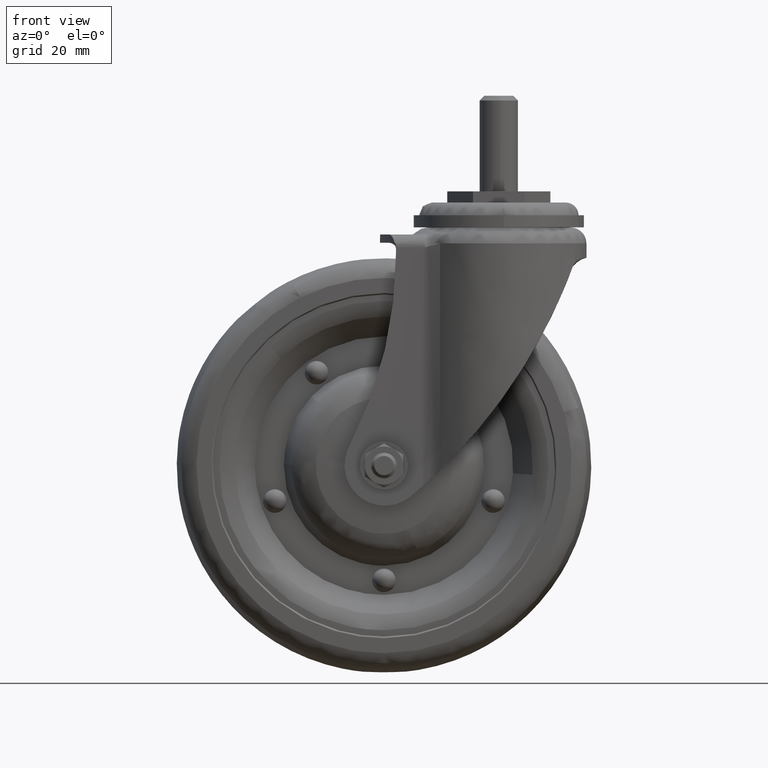
[diagram: clean part render]
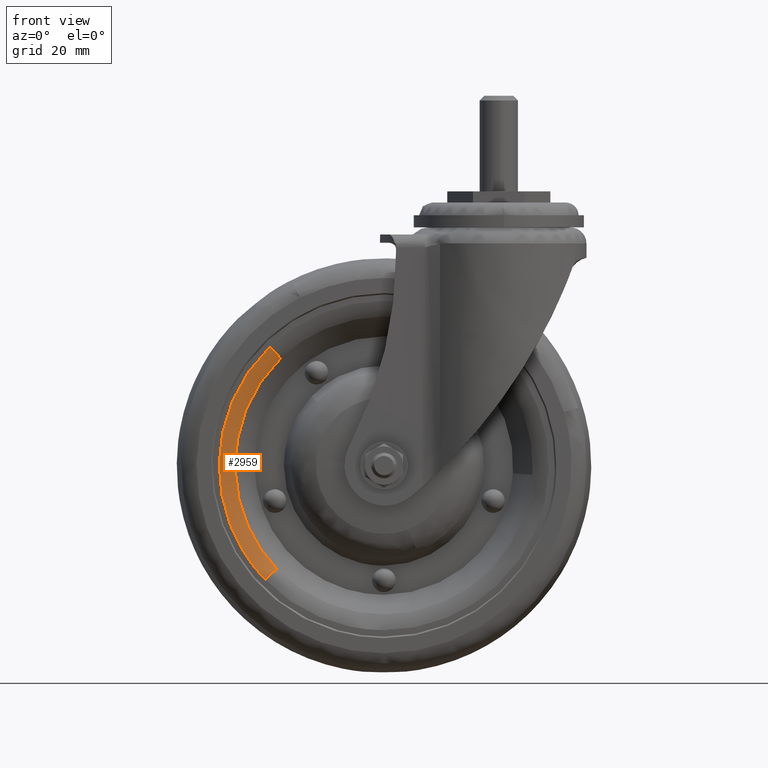
[diagram: same view with one face highlighted and labeled with its STEP entity id]
A machine part, front view. The second image highlights one B-rep face of the part: STEP entity #2959.
In plain terms, the highlighted face is a freeform B-spline surface patch.
Its self-contained STEP definition (entity closure, byte-faithful):
#87=CARTESIAN_POINT('',(-68.399482437764959,-9.949747470099226,-52.355657791550350));
#88=VERTEX_POINT('',#87);
#102=CARTESIAN_POINT('',(-69.644530208449666,-9.949747470099226,-118.399670437764900));
#103=VERTEX_POINT('',#102);
#104=CARTESIAN_POINT('',(-68.399482437764959,-9.949747470099226,-52.355657791550350));
#105=CARTESIAN_POINT('',(-82.708466845046274,-9.949747468305809,-66.135124653402571));
#106=CARTESIAN_POINT('',(-82.708466845046289,-9.949747468305809,-86.000188000000009));
#107=CARTESIAN_POINT('',(-82.708466845046289,-9.949747468305809,-104.833712656213380));
#108=CARTESIAN_POINT('',(-69.644530208449666,-9.949747470099226,-118.399670437764900));
#116=(BOUNDED_CURVE()B_SPLINE_CURVE(2,(#104,#105,#106,#107,#108),.UNSPECIFIED.,.F.,.U.)B_SPLINE_CURVE_WITH_KNOTS((3,2,3),(0.622155737437418,0.750000000000000,0.872155737437417),.UNSPECIFIED.)CURVE()GEOMETRIC_REPRESENTATION_ITEM()RATIONAL_B_SPLINE_CURVE((0.853629213191968,0.850221129724853,1.0,0.856885651461696,0.853629213191968))REPRESENTATION_ITEM(''));
#117=EDGE_CURVE('',#88,#103,#116,.T.);
#2839=CARTESIAN_POINT('',(-73.209877977737094,-12.0,-121.833079129158410));
#2840=VERTEX_POINT('',#2839);
#2873=CARTESIAN_POINT('',(-71.832891129158440,-12.0,-48.790310022262922));
#2874=VERTEX_POINT('',#2873);
#2888=CARTESIAN_POINT('',(-71.832891129158440,-12.000000000000002,-48.790310022262908));
#2889=CARTESIAN_POINT('',(-69.821646883534328,-11.999999997979304,-50.878842390272212));
#2890=CARTESIAN_POINT('',(-68.399482437764945,-9.949747470099226,-52.355657791550350));
#2898=(BOUNDED_CURVE()B_SPLINE_CURVE(2,(#2888,#2889,#2890),.UNSPECIFIED.,.F.,.U.)B_SPLINE_CURVE_WITH_KNOTS((3,3),(-1.556175678293999,-0.434617038927040),.UNSPECIFIED.)CURVE()GEOMETRIC_REPRESENTATION_ITEM()RATIONAL_B_SPLINE_CURVE((0.922813124655940,0.853101096639037,0.923967181512607))REPRESENTATION_ITEM(''));
#2899=EDGE_CURVE('',#2874,#88,#2898,.T.);
#2906=CARTESIAN_POINT('',(-73.209877977737094,-11.999999999999998,-121.833079129158450));
#2907=CARTESIAN_POINT('',(-71.121345609727783,-11.999999997979296,-119.821834883534270));
#2908=CARTESIAN_POINT('',(-69.644530208449666,-9.949747470099226,-118.399670437764970));
#2916=(BOUNDED_CURVE()B_SPLINE_CURVE(2,(#2906,#2907,#2908),.UNSPECIFIED.,.F.,.U.)B_SPLINE_CURVE_WITH_KNOTS((3,3),(-1.556175678293993,-0.434617038927041),.UNSPECIFIED.)CURVE()GEOMETRIC_REPRESENTATION_ITEM()RATIONAL_B_SPLINE_CURVE((0.922813124655939,0.853101096639038,0.923967181512607))REPRESENTATION_ITEM(''));
#2917=EDGE_CURVE('',#2840,#103,#2916,.T.);
#2922=CARTESIAN_POINT('',(-72.017873280369514,-11.994918354634446,-48.598219374306417));
#2923=CARTESIAN_POINT('',(-109.419841906063080,-11.994918354634448,-84.616092654675938));
#2924=CARTESIAN_POINT('',(-73.401968625693598,-11.994918354634446,-122.018061280369480));
#2925=CARTESIAN_POINT('',(-69.788039054506541,-12.117474425315422,-50.913741701430610));
#2926=CARTESIAN_POINT('',(-104.874485353075910,-12.117474425315418,-84.701780755937151));
#2927=CARTESIAN_POINT('',(-71.086446298569413,-12.117474425315422,-119.788227054506590));
#2928=CARTESIAN_POINT('',(-68.271338243788222,-9.757841733852004,-52.488726312417270));
#2929=CARTESIAN_POINT('',(-101.782799931370920,-9.757841733852006,-84.760064556205506));
#2930=CARTESIAN_POINT('',(-69.511461687582710,-9.757841733852004,-118.271526243788190));
#2938=(BOUNDED_SURFACE()B_SPLINE_SURFACE(2,2,((#2922,#2925,#2928),(#2923,#2926,#2929),(#2924,#2927,#2930)),.UNSPECIFIED.,.F.,.F.,.U.)B_SPLINE_SURFACE_WITH_KNOTS((3,3),(3,3),(0.0,86.031978658749551),(0.0,6.125948522395667),.UNSPECIFIED.)GEOMETRIC_REPRESENTATION_ITEM()RATIONAL_B_SPLINE_SURFACE(((0.930128207538021,0.845728404796089,0.931397481203657),(0.657699962923023,0.598020290073396,0.658597474939176),(0.930128207538021,0.845728404796089,0.931397481203657)))REPRESENTATION_ITEM('')SURFACE());
#2939=CARTESIAN_POINT('',(-71.832891129158440,-11.999999999999998,-48.790310022262915));
#2940=CARTESIAN_POINT('',(-87.658214313352090,-11.999999999999996,-64.030002099631659));
#2941=CARTESIAN_POINT('',(-87.658214313352090,-12.0,-86.000188000000009));
#2942=CARTESIAN_POINT('',(-87.658214313352090,-12.000000000000002,-106.829521923420000));
#2943=CARTESIAN_POINT('',(-73.209877977737094,-12.0,-121.833079129158410));
#2951=(BOUNDED_CURVE()B_SPLINE_CURVE(2,(#2939,#2940,#2941,#2942,#2943),.UNSPECIFIED.,.F.,.U.)B_SPLINE_CURVE_WITH_KNOTS((3,2,3),(0.622155737437417,0.750000000000000,0.872155737437416),.UNSPECIFIED.)CURVE()GEOMETRIC_REPRESENTATION_ITEM()RATIONAL_B_SPLINE_CURVE((0.853629213191968,0.850221129724851,1.0,0.856885651461697,0.853629213191968))REPRESENTATION_ITEM(''));
#2952=EDGE_CURVE('',#2874,#2840,#2951,.T.);
#2953=ORIENTED_EDGE('',*,*,#2952,.T.);
#2954=ORIENTED_EDGE('',*,*,#2917,.T.);
#2955=ORIENTED_EDGE('',*,*,#117,.F.);
#2956=ORIENTED_EDGE('',*,*,#2899,.F.);
#2957=EDGE_LOOP('',(#2953,#2954,#2955,#2956));
#2958=FACE_OUTER_BOUND('',#2957,.T.);
#2959=ADVANCED_FACE('',(#2958),#2938,.T.);